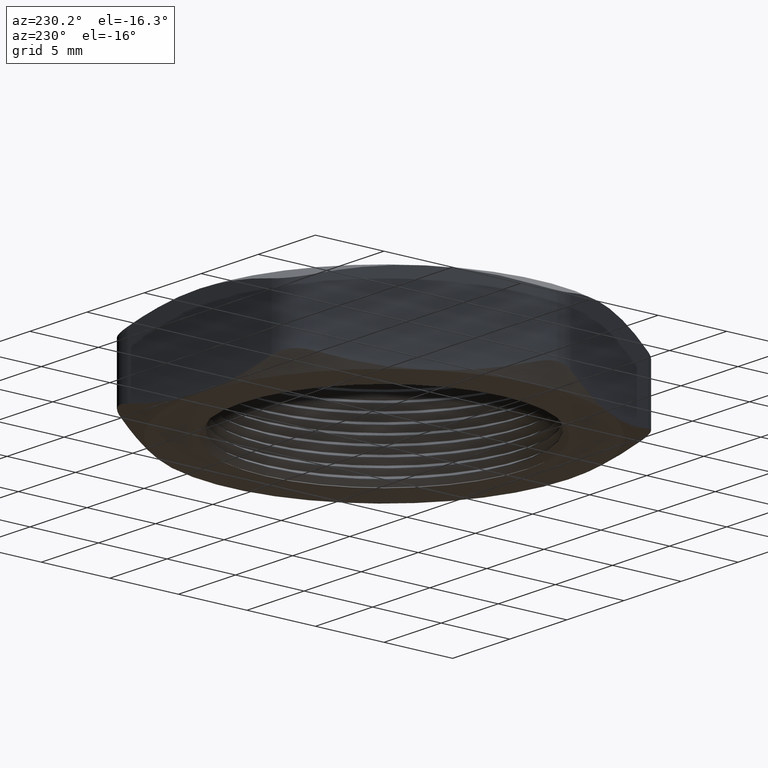
[diagram: clean part render]
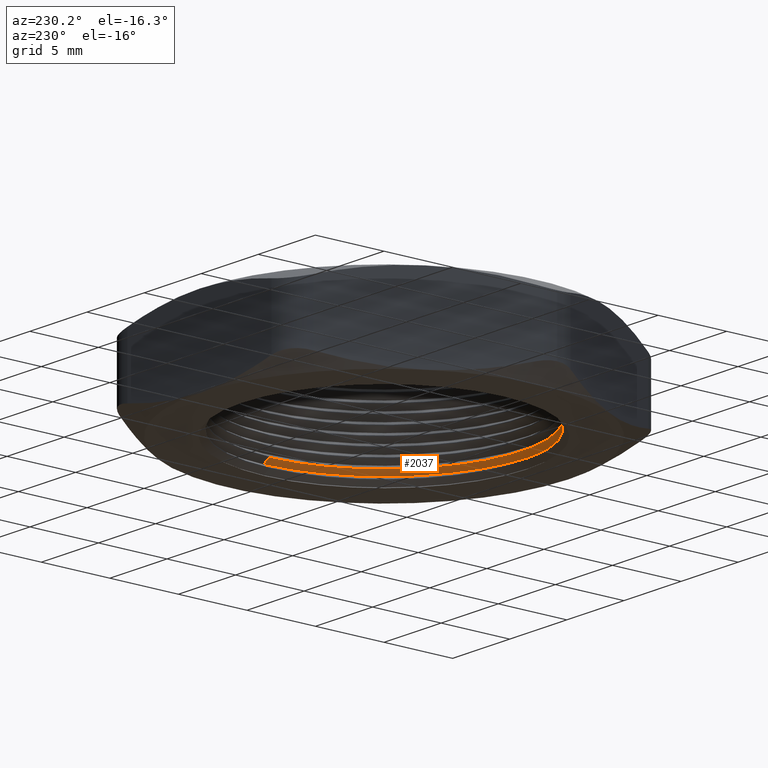
[diagram: same view with one face highlighted and labeled with its STEP entity id]
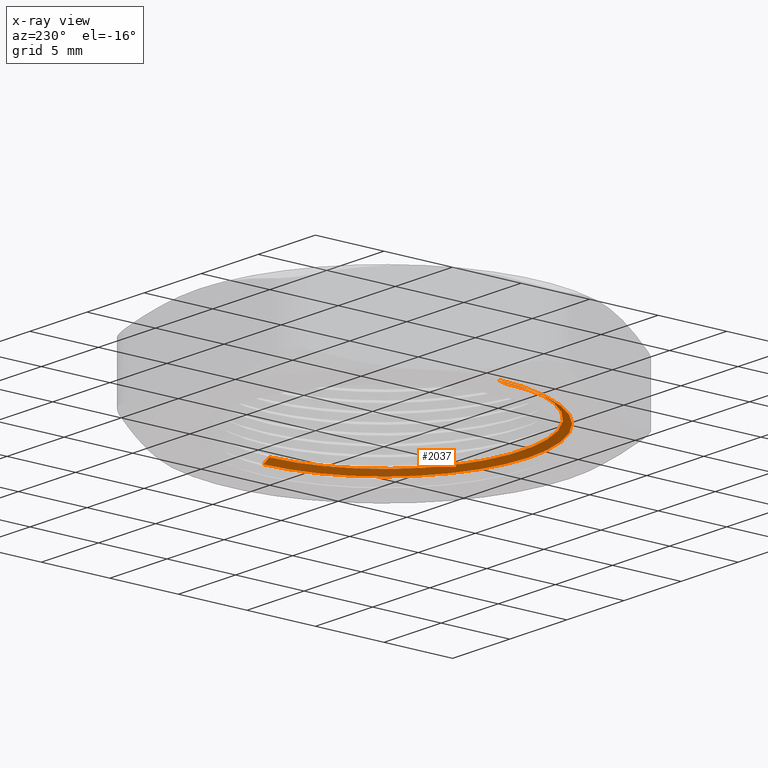
[diagram: x-ray of the same camera — body ghosted, the highlighted face saturated]
A machine part, auxiliary view. The second image highlights one B-rep face of the part: STEP entity #2037.
The next image is the same camera in x-ray: the body ghosted, the highlighted face saturated — about 0% of this face is hidden behind the body in this view.
In plain terms, the highlighted conical surface has half-angle 60 deg.
Its self-contained STEP definition (entity closure, byte-faithful):
#1219 = FACE_OUTER_BOUND ( 'NONE', #2038, .T. ) ;
#1224 = CARTESIAN_POINT ( 'NONE',  ( 0.4150000000000000400, 5.082284216461516300E-017, 0.02845299461620777100 ) ) ;
#1225 = DIRECTION ( 'NONE',  ( 1.000000000000000000, 0.0000000000000000000, 0.0000000000000000000 ) ) ;
#1226 = DIRECTION ( 'NONE',  ( 0.0000000000000000000, 0.0000000000000000000, 1.000000000000000000 ) ) ;
#1227 = CARTESIAN_POINT ( 'NONE',  ( 0.0000000000000000000, 0.0000000000000000000, 0.02845299461620777100 ) ) ;
#1228 = AXIS2_PLACEMENT_3D ( 'NONE', #1227, #1226, #1225 ) ;
#1229 = CIRCLE ( 'NONE', #1228, 0.4150000000000000400 ) ;
#1230 = CARTESIAN_POINT ( 'NONE',  ( -0.4150000000000000400, 0.0000000000000000000, 0.02845299461620777100 ) ) ;
#1235 = DIRECTION ( 'NONE',  ( 0.8660254037844441500, 1.060575238724913900E-016, -0.4999999999999902300 ) ) ;
#1236 = VECTOR ( 'NONE', #1235, 39.37007874015748100 ) ;
#1237 = CARTESIAN_POINT ( 'NONE',  ( 0.4150000000000000400, 5.082284216461516300E-017, 0.02845299461620777100 ) ) ;
#1238 = LINE ( 'NONE', #1237, #1236 ) ;
#1239 = CARTESIAN_POINT ( 'NONE',  ( 0.3950000000000000200, 4.837354856632044300E-017, 0.03999999999999998000 ) ) ;
#1240 = DIRECTION ( 'NONE',  ( 1.000000000000000000, 0.0000000000000000000, 0.0000000000000000000 ) ) ;
#1241 = DIRECTION ( 'NONE',  ( 0.0000000000000000000, 0.0000000000000000000, 1.000000000000000000 ) ) ;
#1242 = AXIS2_PLACEMENT_3D ( 'NONE', #1249, #1241, #1240 ) ;
#1243 = CIRCLE ( 'NONE', #1242, 0.3950000000000000200 ) ;
#1249 = CARTESIAN_POINT ( 'NONE',  ( 0.0000000000000000000, 0.0000000000000000000, 0.03999999999999998000 ) ) ;
#1305 = DIRECTION ( 'NONE',  ( -0.8660254037844441500, 0.0000000000000000000, -0.4999999999999902300 ) ) ;
#1306 = VECTOR ( 'NONE', #1305, 39.37007874015748100 ) ;
#1307 = CARTESIAN_POINT ( 'NONE',  ( -0.4150000000000000400, 0.0000000000000000000, 0.02845299461620777100 ) ) ;
#1312 = LINE ( 'NONE', #1307, #1306 ) ;
#1399 = CARTESIAN_POINT ( 'NONE',  ( -0.3950000000000000200, 0.0000000000000000000, 0.03999999999999998000 ) ) ;
#1400 = DIRECTION ( 'NONE',  ( -1.000000000000000000, 0.0000000000000000000, 0.0000000000000000000 ) ) ;
#1401 = DIRECTION ( 'NONE',  ( 0.0000000000000000000, 0.0000000000000000000, -1.000000000000000000 ) ) ;
#1402 = CARTESIAN_POINT ( 'NONE',  ( 0.0000000000000000000, 0.0000000000000000000, 0.02845299461620777100 ) ) ;
#1403 = AXIS2_PLACEMENT_3D ( 'NONE', #1402, #1401, #1400 ) ;
#1404 = CONICAL_SURFACE ( 'NONE', #1403, 0.4150000000000000400, 1.047197551196609000 ) ;
#2018 = ORIENTED_EDGE ( 'NONE', *, *, #2033, .F. ) ;
#2019 = ORIENTED_EDGE ( 'NONE', *, *, #2020, .F. ) ;
#2020 = EDGE_CURVE ( 'NONE', #2039, #2031, #1312, .T. ) ;
#2025 = ORIENTED_EDGE ( 'NONE', *, *, #2026, .T. ) ;
#2026 = EDGE_CURVE ( 'NONE', #2039, #2027, #1243, .T. ) ;
#2027 = VERTEX_POINT ( 'NONE', #1239 ) ;
#2028 = ORIENTED_EDGE ( 'NONE', *, *, #2029, .T. ) ;
#2029 = EDGE_CURVE ( 'NONE', #2027, #2034, #1238, .T. ) ;
#2031 = VERTEX_POINT ( 'NONE', #1230 ) ;
#2033 = EDGE_CURVE ( 'NONE', #2031, #2034, #1229, .T. ) ;
#2034 = VERTEX_POINT ( 'NONE', #1224 ) ;
#2037 = ADVANCED_FACE ( 'NONE', ( #1219 ), #1404, .F. ) ;
#2038 = EDGE_LOOP ( 'NONE', ( #2025, #2028, #2018, #2019 ) ) ;
#2039 = VERTEX_POINT ( 'NONE', #1399 ) ;